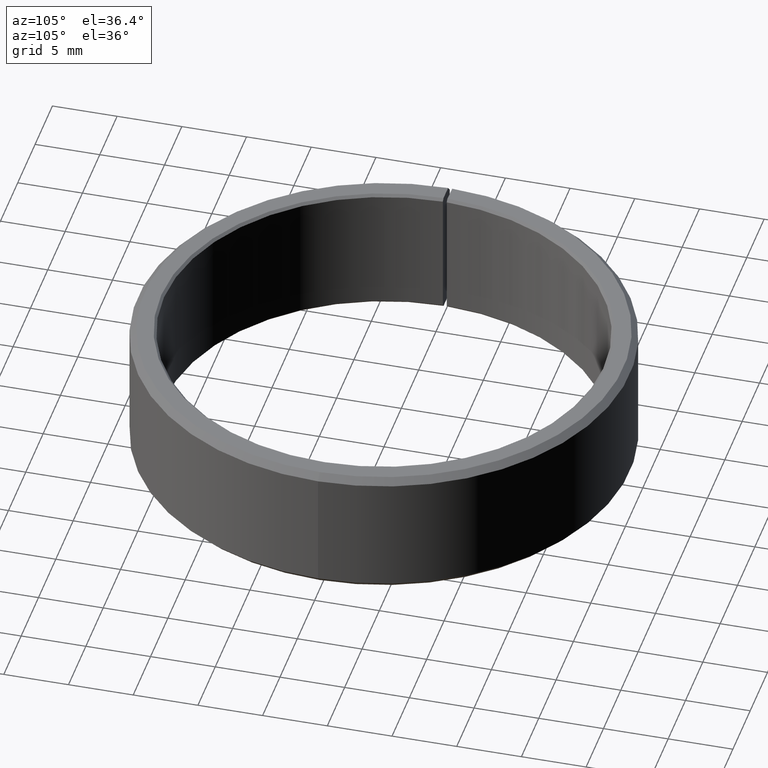
[diagram: clean part render]
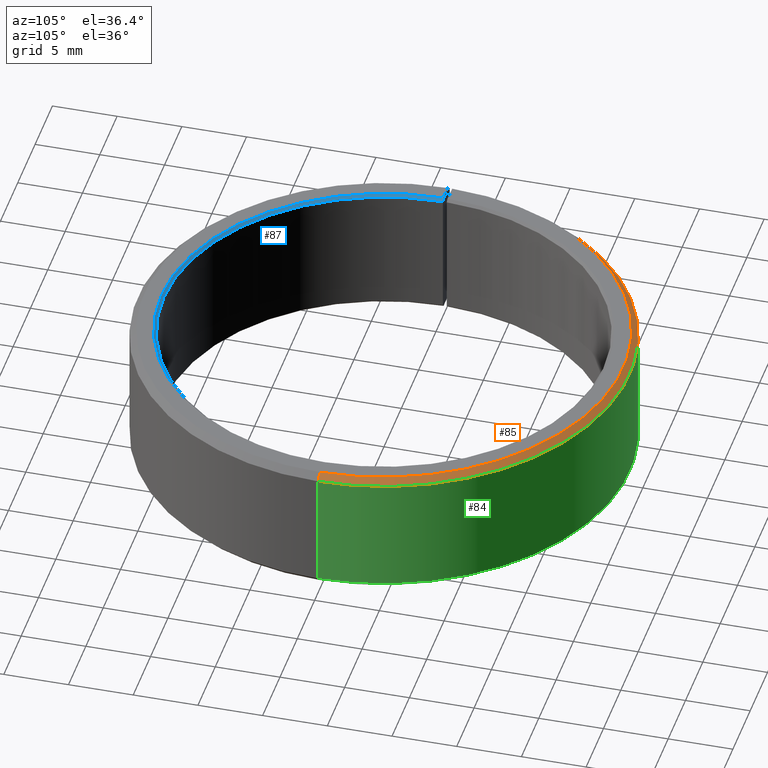
[diagram: same view with three faces highlighted in distinct colors, each labeled with its STEP entity id]
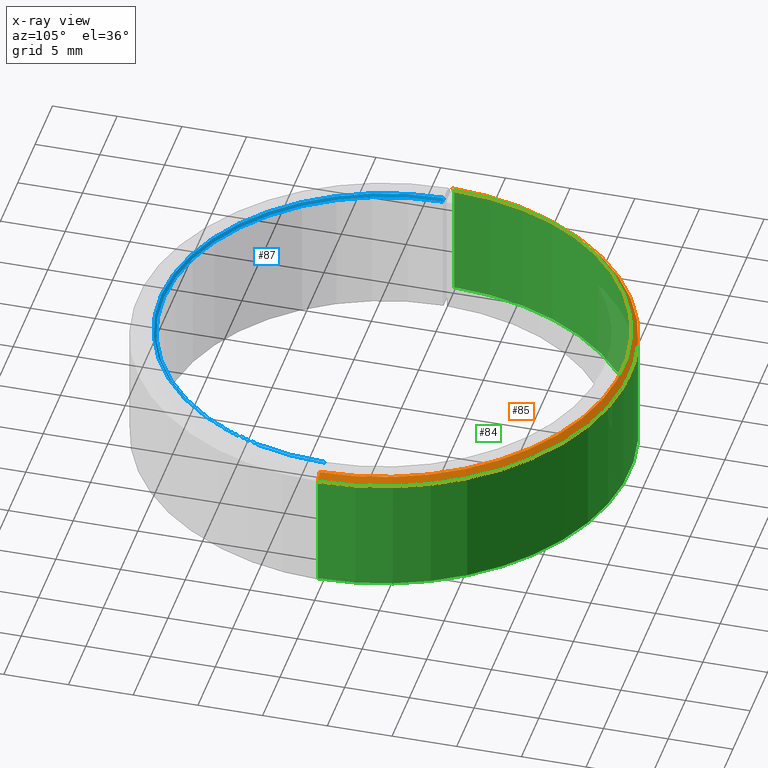
[diagram: x-ray of the same camera — body ghosted, the three highlighted faces saturated]
A machine part, auxiliary view with three faces highlighted in distinct colors.
The next image is the same camera in x-ray (body ghosted, the three faces saturated) — at least one of them is partly hidden behind the body in this view.
Their STEP definitions:

[orange] entity #85 — the highlighted conical surface has half-angle 45 deg.
#85=ADVANCED_FACE('',(#112),#113,.T.);
#112=FACE_OUTER_BOUND('',#144,.T.);
#113=CONICAL_SURFACE('',#145,18.75,0.785398163397446);
#144=EDGE_LOOP('',(#228,#229,#230,#231));
#145=AXIS2_PLACEMENT_3D('',#232,#233,#234);
#228=ORIENTED_EDGE('',*,*,#287,.T.);
#229=ORIENTED_EDGE('',*,*,#309,.T.);
#230=ORIENTED_EDGE('',*,*,#310,.T.);
#231=ORIENTED_EDGE('',*,*,#311,.F.);
#232=CARTESIAN_POINT('',(6.81342277660993E-015,-8.32928339366232E-015,9.75));
#233=DIRECTION('',(-5.48707263966372E-016,6.09939603923743E-016,-1.0));
#234=DIRECTION('',(-1.0,-3.21624529935327E-016,5.48707263966372E-016));
#287=EDGE_CURVE('',#331,#332,#333,.T.);
#309=EDGE_CURVE('',#332,#366,#368,.T.);
#310=EDGE_CURVE('',#366,#369,#370,.T.);
#311=EDGE_CURVE('',#331,#369,#371,.T.);
#331=VERTEX_POINT('',#397);
#332=VERTEX_POINT('',#398);
#333=LINE('',#399,#400);
#366=VERTEX_POINT('',#444);
#368=CIRCLE('',#447,19.0);
#369=VERTEX_POINT('',#448);
#370=LINE('',#449,#450);
#371=CIRCLE('',#451,18.5);
#397=CARTESIAN_POINT('',(18.5,-4.7973110692623E-015,9.99999999999999));
#398=CARTESIAN_POINT('',(19.0,-4.68361495708763E-015,9.49999999999999));
#399=CARTESIAN_POINT('',(18.75,-4.59503620577622E-015,9.74999999999999));
#400=VECTOR('',#477,1.0);
#444=CARTESIAN_POINT('',(-18.9971062079714,0.331595722308373,9.50000000000001));
#447=AXIS2_PLACEMENT_3D('',#517,#518,#519);
#448=CARTESIAN_POINT('',(-18.4971823603932,0.322869519089733,10.0));
#449=CARTESIAN_POINT('',(-18.9971062079714,0.331595722308373,9.50000000000001));
#450=VECTOR('',#520,10.0);
#451=AXIS2_PLACEMENT_3D('',#521,#522,#523);
#477=DIRECTION('',(0.707106781186546,5.72119710538373E-016,-0.707106781186549));
#517=CARTESIAN_POINT('',(6.67624596061834E-015,-8.19210657767073E-015,9.5));
#518=DIRECTION('',(5.48707263966372E-016,-6.09939603923743E-016,1.0));
#519=DIRECTION('',(-1.0,-3.21624529935327E-016,5.48707263966372E-016));
#520=DIRECTION('',(0.706999085398823,-0.0123407149398271,0.707106781186549));
#521=CARTESIAN_POINT('',(6.95059959260153E-015,-8.46646020965391E-015,10.0));
#522=DIRECTION('',(5.48707263966372E-016,-6.09939603923743E-016,1.0));
#523=DIRECTION('',(-1.0,-3.21624529935327E-016,5.48707263966372E-016));

[blue] entity #87 — the highlighted conical surface has half-angle 45 deg.
#87=ADVANCED_FACE('',(#116),#117,.F.);
#116=FACE_OUTER_BOUND('',#148,.T.);
#117=CONICAL_SURFACE('',#149,17.1,0.785398163397448);
#148=EDGE_LOOP('',(#244,#245,#246,#247));
#149=AXIS2_PLACEMENT_3D('',#248,#249,#250);
#244=ORIENTED_EDGE('',*,*,#284,.T.);
#245=ORIENTED_EDGE('',*,*,#315,.F.);
#246=ORIENTED_EDGE('',*,*,#316,.F.);
#247=ORIENTED_EDGE('',*,*,#313,.T.);
#248=CARTESIAN_POINT('',(6.89572886620489E-015,-8.41158948325728E-015,9.9));
#249=DIRECTION('',(5.48707263966372E-016,-6.09939603923743E-016,1.0));
#250=DIRECTION('',(-1.0,-3.21624529935327E-016,5.48707263966372E-016));
#284=EDGE_CURVE('',#326,#318,#327,.T.);
#313=EDGE_CURVE('',#373,#326,#374,.T.);
#315=EDGE_CURVE('',#376,#318,#377,.T.);
#316=EDGE_CURVE('',#373,#376,#378,.T.);
#318=VERTEX_POINT('',#380);
#326=VERTEX_POINT('',#390);
#327=LINE('',#391,#392);
#373=VERTEX_POINT('',#454);
#374=CIRCLE('',#455,17.2);
#376=VERTEX_POINT('',#458);
#377=CIRCLE('',#459,17.0);
#378=LINE('',#460,#461);
#380=CARTESIAN_POINT('',(17.0,-4.96487807251484E-015,9.79999999999999));
#390=CARTESIAN_POINT('',(17.2,-5.04703402329547E-015,9.99999999999999));
#391=CARTESIAN_POINT('',(17.1,-5.00595604790515E-015,9.89999999999999));
#392=VECTOR('',#472,1.0);
#454=CARTESIAN_POINT('',(-17.2,-1.37193307422581E-014,10.0));
#455=AXIS2_PLACEMENT_3D('',#525,#526,#527);
#458=CARTESIAN_POINT('',(-17.0,-1.37550625204113E-014,9.80000000000001));
#459=AXIS2_PLACEMENT_3D('',#529,#530,#531);
#460=CARTESIAN_POINT('',(-17.2,-1.37193307422581E-014,10.0));
#461=VECTOR('',#532,10.0);
#472=DIRECTION('',(-0.707106781186548,2.90465149559059E-016,-0.707106781186547));
#525=CARTESIAN_POINT('',(6.95059959260153E-015,-8.46646020965391E-015,10.0));
#526=DIRECTION('',(5.48707263966372E-016,-6.09939603923743E-016,1.0));
#527=DIRECTION('',(-1.0,-3.21624529935328E-016,5.48707263966372E-016));
#529=CARTESIAN_POINT('',(6.84085813980825E-015,-8.35671875686064E-015,9.8));
#530=DIRECTION('',(5.48707263966372E-016,-6.09939603923743E-016,1.0));
#531=DIRECTION('',(-1.0,-3.21624529935328E-016,5.48707263966372E-016));
#532=DIRECTION('',(0.707106781186547,6.15417513350147E-016,-0.707106781186548));

[green] entity #84 — the highlighted cylindrical surface (partial cylindrical patch) has radius 19 mm, axis along (0, -0, 1).
#84=ADVANCED_FACE('',(#110),#111,.T.);
#110=FACE_OUTER_BOUND('',#142,.T.);
#111=CYLINDRICAL_SURFACE('',#143,19.0);
#142=EDGE_LOOP('',(#221,#222,#223,#224));
#143=AXIS2_PLACEMENT_3D('',#225,#226,#227);
#221=ORIENTED_EDGE('',*,*,#291,.T.);
#222=ORIENTED_EDGE('',*,*,#307,.T.);
#223=ORIENTED_EDGE('',*,*,#308,.T.);
#224=ORIENTED_EDGE('',*,*,#309,.F.);
#225=CARTESIAN_POINT('',(4.20706327276966E-015,-5.72292388982204E-015,5.0));
#226=DIRECTION('',(5.48707263966372E-016,-6.09939603923743E-016,1.0));
#227=DIRECTION('',(-1.0,-3.21624529935327E-016,5.48707263966372E-016));
#291=EDGE_CURVE('',#332,#339,#340,.T.);
#307=EDGE_CURVE('',#339,#363,#365,.T.);
#308=EDGE_CURVE('',#363,#366,#367,.T.);
#309=EDGE_CURVE('',#332,#366,#368,.T.);
#332=VERTEX_POINT('',#398);
#339=VERTEX_POINT('',#407);
#340=LINE('',#408,#409);
#363=VERTEX_POINT('',#440);
#365=CIRCLE('',#443,19.0);
#366=VERTEX_POINT('',#444);
#367=LINE('',#445,#446);
#368=CIRCLE('',#447,19.0);
#398=CARTESIAN_POINT('',(19.0,-4.68361495708763E-015,9.49999999999999));
#407=CARTESIAN_POINT('',(19.0,1.62521088805371E-015,0.499999999999992));
#408=CARTESIAN_POINT('',(19.0,-1.93888673943079E-015,4.99999999999999));
#409=VECTOR('',#485,1.0);
#440=CARTESIAN_POINT('',(-18.9971062079714,0.331595722308379,0.500000000000013));
#443=AXIS2_PLACEMENT_3D('',#513,#514,#515);
#444=CARTESIAN_POINT('',(-18.9971062079714,0.331595722308373,9.50000000000001));
#445=CARTESIAN_POINT('',(-18.9971062079714,0.331595722308379,0.500000000000013));
#446=VECTOR('',#516,10.0);
#447=AXIS2_PLACEMENT_3D('',#517,#518,#519);
#485=DIRECTION('',(-5.48707263966372E-016,6.09939603923743E-016,-1.0));
#513=CARTESIAN_POINT('',(1.73788058492098E-015,-2.1435181773482E-015,0.500000000000003));
#514=DIRECTION('',(5.48707263966372E-016,-6.09939603923743E-016,1.0));
#515=DIRECTION('',(-1.0,-3.21624529935327E-016,5.48707263966372E-016));
#516=DIRECTION('',(5.47623019710216E-016,-6.72055915757338E-016,1.0));
#517=CARTESIAN_POINT('',(6.67624596061834E-015,-8.19210657767073E-015,9.5));
#518=DIRECTION('',(5.48707263966372E-016,-6.09939603923743E-016,1.0));
#519=DIRECTION('',(-1.0,-3.21624529935327E-016,5.48707263966372E-016));